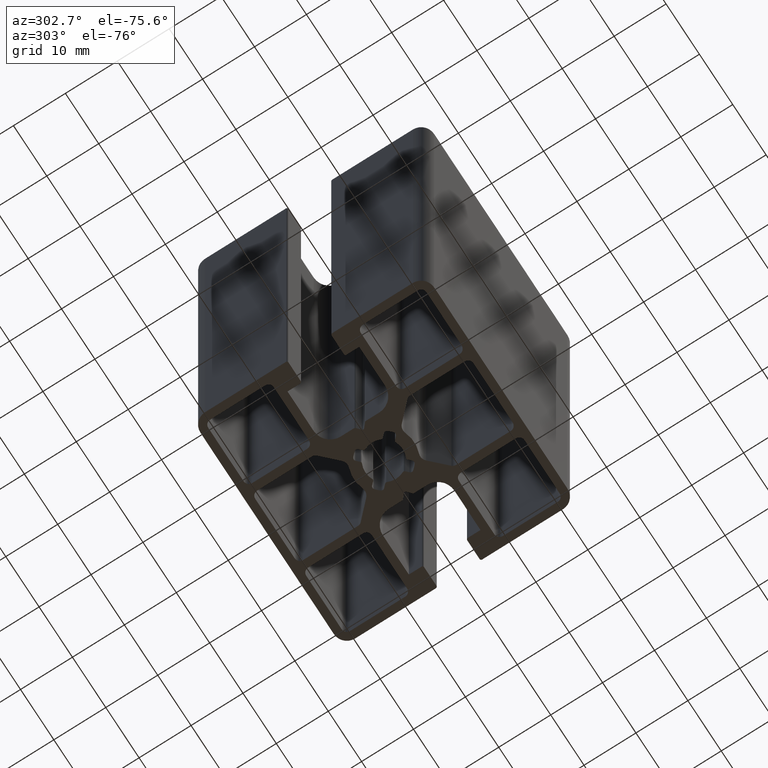
[diagram: clean part render]
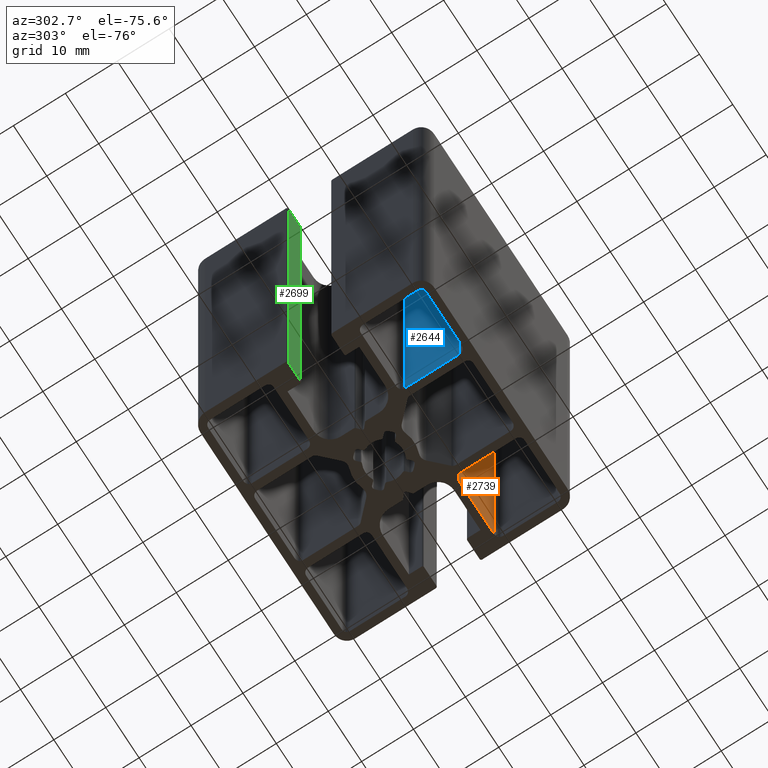
[diagram: same view with three faces highlighted in distinct colors, each labeled with its STEP entity id]
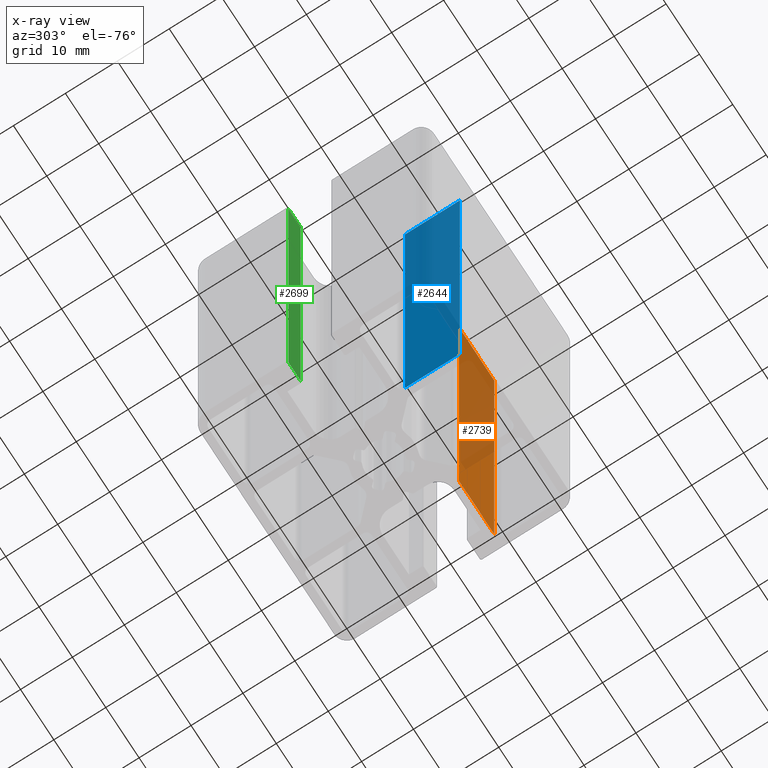
[diagram: x-ray of the same camera — body ghosted, the three highlighted faces saturated]
A machine part, auxiliary view with three faces highlighted in distinct colors.
The next image is the same camera in x-ray (body ghosted, the three faces saturated) — at least one of them is partly hidden behind the body in this view.
Their STEP definitions:

[orange] entity #2739 — the highlighted planar face has unit normal (0, 1, 0).
#81=PLANE('',#3019);
#213=FACE_OUTER_BOUND('',#351,.T.);
#351=EDGE_LOOP('',(#2213,#2214,#2215,#2216));
#609=LINE('',#4625,#865);
#610=LINE('',#4629,#866);
#611=LINE('',#4631,#867);
#612=LINE('',#4632,#868);
#865=VECTOR('',#3799,100.);
#866=VECTOR('',#3804,10.6000000000026);
#867=VECTOR('',#3805,100.);
#868=VECTOR('',#3806,10.6000000000026);
#1293=VERTEX_POINT('',#4622);
#1294=VERTEX_POINT('',#4624);
#1295=VERTEX_POINT('',#4628);
#1296=VERTEX_POINT('',#4630);
#1684=EDGE_CURVE('',#1294,#1293,#609,.T.);
#1686=EDGE_CURVE('',#1295,#1293,#610,.T.);
#1687=EDGE_CURVE('',#1296,#1295,#611,.T.);
#1688=EDGE_CURVE('',#1294,#1296,#612,.T.);
#2213=ORIENTED_EDGE('',*,*,#1686,.F.);
#2214=ORIENTED_EDGE('',*,*,#1687,.F.);
#2215=ORIENTED_EDGE('',*,*,#1688,.F.);
#2216=ORIENTED_EDGE('',*,*,#1684,.T.);
#2739=ADVANCED_FACE('',(#213),#81,.F.);
#3019=AXIS2_PLACEMENT_3D('',#4627,#3802,#3803);
#3799=DIRECTION('',(0.,0.,1.));
#3802=DIRECTION('center_axis',(2.75356257711208E-13,1.,0.));
#3803=DIRECTION('ref_axis',(-1.,2.75335310107039E-13,0.));
#3804=DIRECTION('',(1.,-2.75356257711208E-13,0.));
#3805=DIRECTION('',(0.,0.,1.));
#3806=DIRECTION('',(-1.,2.75356257711208E-13,0.));
#4622=CARTESIAN_POINT('',(20.,-8.400000000004,100.));
#4624=CARTESIAN_POINT('',(20.,-8.400000000004,0.));
#4625=CARTESIAN_POINT('',(20.,-8.400000000004,0.));
#4627=CARTESIAN_POINT('Origin',(20.,-8.400000000004,0.));
#4628=CARTESIAN_POINT('',(9.39999999999735,-8.40000000000108,100.));
#4629=CARTESIAN_POINT('',(9.99999999999884,-8.40000000000125,100.));
#4630=CARTESIAN_POINT('',(9.39999999999735,-8.40000000000108,0.));
#4631=CARTESIAN_POINT('',(9.39999999999735,-8.40000000000108,0.));
#4632=CARTESIAN_POINT('',(9.99999999999884,-8.40000000000125,0.));

[blue] entity #2644 — the highlighted planar face has unit normal (1, -0, 0).
#40=PLANE('',#2816);
#118=FACE_OUTER_BOUND('',#256,.T.);
#256=EDGE_LOOP('',(#1833,#1834,#1835,#1836));
#430=LINE('',#4049,#686);
#431=LINE('',#4053,#687);
#432=LINE('',#4055,#688);
#433=LINE('',#4056,#689);
#686=VECTOR('',#3214,100.);
#687=VECTOR('',#3219,10.6000000000053);
#688=VECTOR('',#3220,100.);
#689=VECTOR('',#3221,10.6000000000053);
#1099=VERTEX_POINT('',#4046);
#1100=VERTEX_POINT('',#4048);
#1101=VERTEX_POINT('',#4052);
#1102=VERTEX_POINT('',#4054);
#1397=EDGE_CURVE('',#1100,#1099,#430,.T.);
#1399=EDGE_CURVE('',#1101,#1099,#431,.T.);
#1400=EDGE_CURVE('',#1102,#1101,#432,.T.);
#1401=EDGE_CURVE('',#1100,#1102,#433,.T.);
#1833=ORIENTED_EDGE('',*,*,#1399,.F.);
#1834=ORIENTED_EDGE('',*,*,#1400,.F.);
#1835=ORIENTED_EDGE('',*,*,#1401,.F.);
#1836=ORIENTED_EDGE('',*,*,#1397,.T.);
#2644=ADVANCED_FACE('',(#118),#40,.F.);
#2816=AXIS2_PLACEMENT_3D('',#4051,#3217,#3218);
#3214=DIRECTION('',(0.,0.,1.));
#3217=DIRECTION('center_axis',(1.,-2.74518353541611E-13,0.));
#3218=DIRECTION('ref_axis',(2.74447131687339E-13,1.,0.));
#3219=DIRECTION('',(-2.74518353541611E-13,-1.,0.));
#3220=DIRECTION('',(0.,0.,1.));
#3221=DIRECTION('',(2.74518353541611E-13,1.,0.));
#4046=CARTESIAN_POINT('',(-8.400000000004,-20.0000000000027,100.));
#4048=CARTESIAN_POINT('',(-8.400000000004,-20.0000000000027,0.));
#4049=CARTESIAN_POINT('',(-8.400000000004,-20.0000000000027,0.));
#4051=CARTESIAN_POINT('Origin',(-8.400000000004,-20.0000000000027,0.));
#4052=CARTESIAN_POINT('',(-8.40000000000109,-9.39999999999735,100.));
#4053=CARTESIAN_POINT('',(-8.40000000000126,-10.0000000000002,100.));
#4054=CARTESIAN_POINT('',(-8.40000000000109,-9.39999999999735,0.));
#4055=CARTESIAN_POINT('',(-8.40000000000109,-9.39999999999735,0.));
#4056=CARTESIAN_POINT('',(-8.40000000000126,-10.0000000000002,0.));

[green] entity #2699 — the highlighted planar face has unit normal (-0, 1, 0).
#60=PLANE('',#2941);
#173=FACE_OUTER_BOUND('',#311,.T.);
#311=EDGE_LOOP('',(#2053,#2054,#2055,#2056));
#526=LINE('',#4383,#782);
#527=LINE('',#4386,#783);
#528=LINE('',#4388,#784);
#529=LINE('',#4389,#785);
#782=VECTOR('',#3562,100.);
#783=VECTOR('',#3565,3.7);
#784=VECTOR('',#3566,3.7);
#785=VECTOR('',#3567,100.);
#1210=VERTEX_POINT('',#4377);
#1212=VERTEX_POINT('',#4381);
#1213=VERTEX_POINT('',#4385);
#1214=VERTEX_POINT('',#4387);
#1564=EDGE_CURVE('',#1212,#1210,#526,.T.);
#1565=EDGE_CURVE('',#1210,#1213,#527,.T.);
#1566=EDGE_CURVE('',#1214,#1212,#528,.T.);
#1567=EDGE_CURVE('',#1214,#1213,#529,.T.);
#2053=ORIENTED_EDGE('',*,*,#1565,.F.);
#2054=ORIENTED_EDGE('',*,*,#1564,.F.);
#2055=ORIENTED_EDGE('',*,*,#1566,.F.);
#2056=ORIENTED_EDGE('',*,*,#1567,.T.);
#2699=ADVANCED_FACE('',(#173),#60,.F.);
#2941=AXIS2_PLACEMENT_3D('',#4384,#3563,#3564);
#3562=DIRECTION('',(0.,0.,1.));
#3563=DIRECTION('center_axis',(-3.23615008664387E-13,1.,0.));
#3564=DIRECTION('ref_axis',(-1.,-3.23652216138726E-13,0.));
#3565=DIRECTION('',(1.,3.23615008664387E-13,0.));
#3566=DIRECTION('',(-1.,-3.23615008664387E-13,0.));
#3567=DIRECTION('',(0.,0.,1.));
#4377=CARTESIAN_POINT('',(-22.2,4.15000000000001,100.));
#4381=CARTESIAN_POINT('',(-22.2,4.15000000000001,0.));
#4383=CARTESIAN_POINT('',(-22.2,4.15000000000001,0.));
#4384=CARTESIAN_POINT('Origin',(-18.5,4.1500000000012,0.));
#4385=CARTESIAN_POINT('',(-18.5,4.1500000000012,100.));
#4386=CARTESIAN_POINT('',(-9.25000000000068,4.1500000000042,100.));
#4387=CARTESIAN_POINT('',(-18.5,4.1500000000012,0.));
#4388=CARTESIAN_POINT('',(-9.25000000000068,4.1500000000042,0.));
#4389=CARTESIAN_POINT('',(-18.5,4.1500000000012,0.));